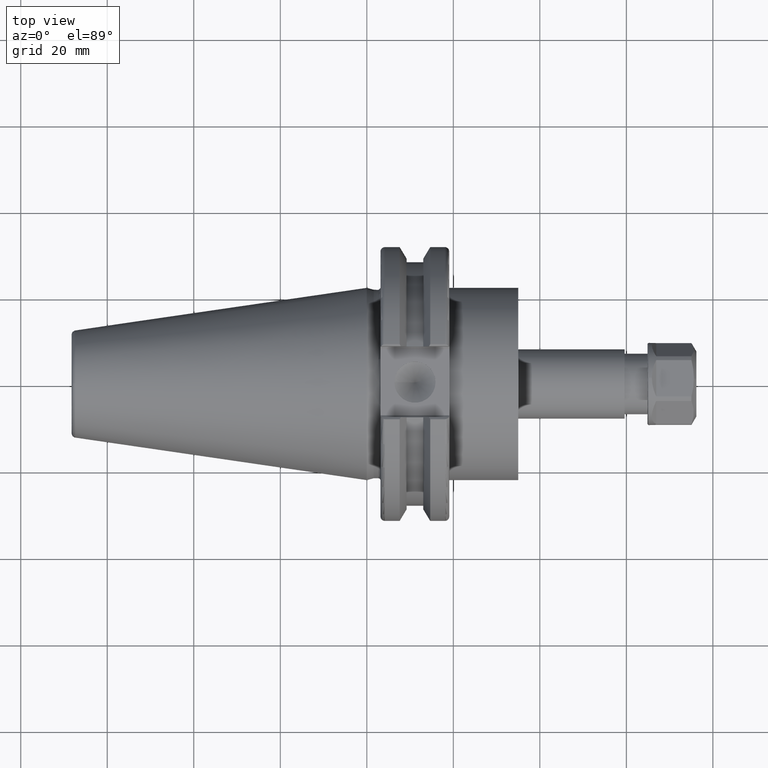
[diagram: clean part render]
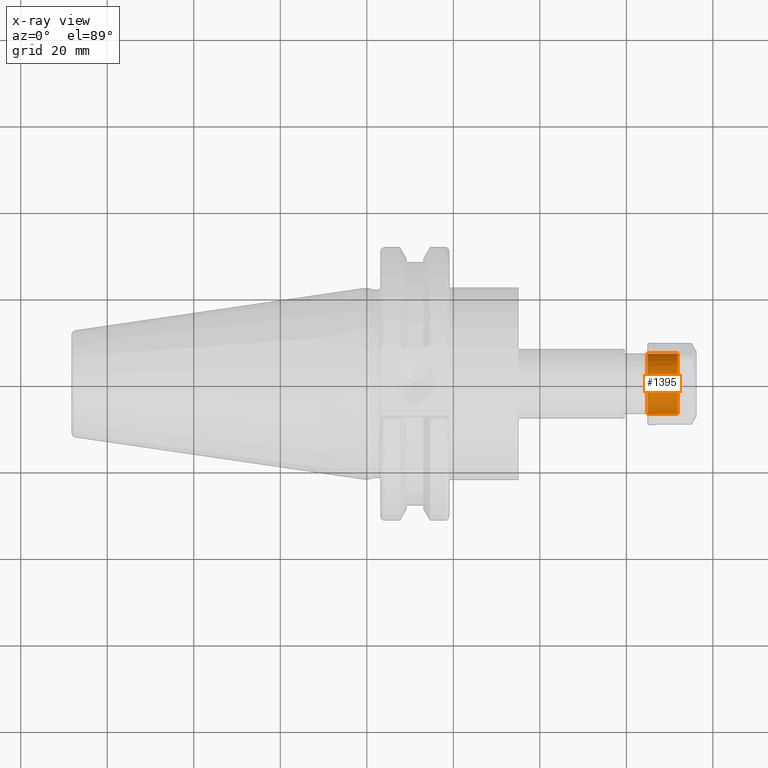
[diagram: x-ray — body ghosted, one internal face saturated and labeled with its STEP entity id]
A machine part, top view, then the same camera in x-ray: the body is ghosted and one INTERNAL B-rep face — a face not visible from any outside direction — is saturated and labeled: STEP entity #1395.
In plain terms, the highlighted cylindrical surface (bore or boss wall) has radius 7 mm, axis along (-1, 0, 0).
Its self-contained STEP definition (entity closure, byte-faithful):
#210=FACE_OUTER_BOUND('',#301,.T.);
#301=EDGE_LOOP('',(#1215,#1216,#1217,#1218));
#393=LINE('',#2494,#486);
#486=VECTOR('',#1942,7.);
#558=CIRCLE('',#1593,7.);
#559=CIRCLE('',#1595,7.);
#673=VERTEX_POINT('',#2489);
#674=VERTEX_POINT('',#2492);
#859=EDGE_CURVE('',#673,#673,#558,.T.);
#860=EDGE_CURVE('',#674,#674,#559,.T.);
#861=EDGE_CURVE('',#674,#673,#393,.T.);
#1215=ORIENTED_EDGE('',*,*,#860,.F.);
#1216=ORIENTED_EDGE('',*,*,#861,.T.);
#1217=ORIENTED_EDGE('',*,*,#859,.T.);
#1218=ORIENTED_EDGE('',*,*,#861,.F.);
#1330=CYLINDRICAL_SURFACE('',#1594,7.);
#1395=ADVANCED_FACE('',(#210),#1330,.F.);
#1593=AXIS2_PLACEMENT_3D('',#2490,#1936,#1937);
#1594=AXIS2_PLACEMENT_3D('',#2491,#1938,#1939);
#1595=AXIS2_PLACEMENT_3D('',#2493,#1940,#1941);
#1936=DIRECTION('center_axis',(-1.,0.,0.));
#1937=DIRECTION('ref_axis',(0.,0.,1.));
#1938=DIRECTION('center_axis',(-1.,0.,0.));
#1939=DIRECTION('ref_axis',(0.,0.,1.));
#1940=DIRECTION('center_axis',(-1.,0.,0.));
#1941=DIRECTION('ref_axis',(0.,0.,1.));
#1942=DIRECTION('',(-1.,0.,0.));
#2489=CARTESIAN_POINT('',(-5.65,-8.57252759403147E-16,-7.));
#2490=CARTESIAN_POINT('Origin',(-5.65,0.,0.));
#2491=CARTESIAN_POINT('Origin',(-5.65,0.,0.));
#2492=CARTESIAN_POINT('',(1.35,-8.57252759403147E-16,-7.));
#2493=CARTESIAN_POINT('Origin',(1.35,0.,0.));
#2494=CARTESIAN_POINT('',(-5.65,-8.57252759403147E-16,-7.));